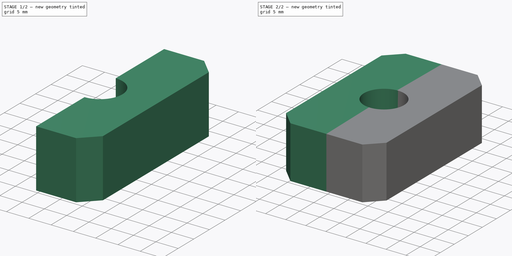
[diagram: build sequence overview — one tinted view per stage of 2, left to right]
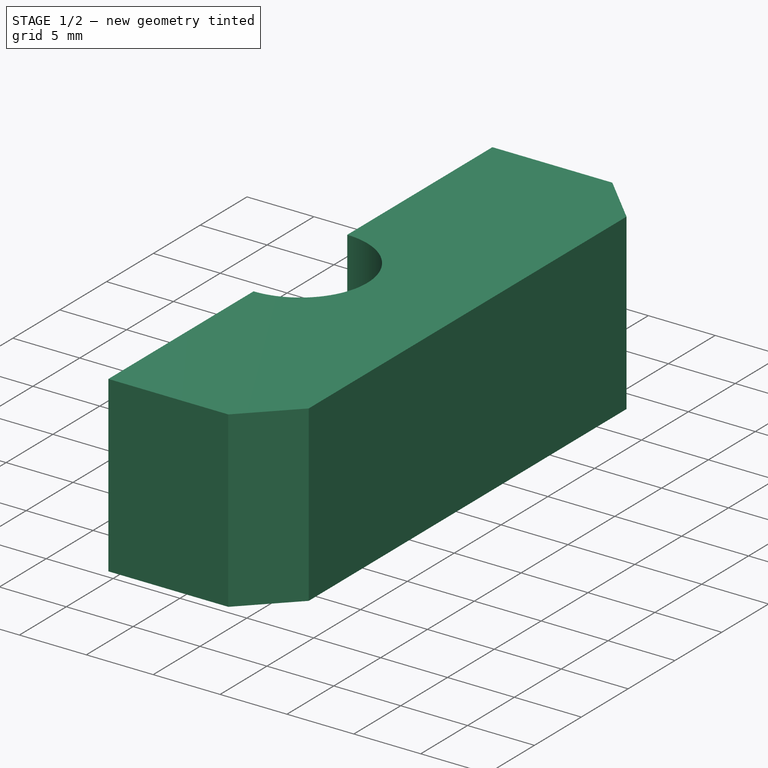
[diagram: stage 1 of 2 — iso view after this stage's code; geometry added in this stage tinted green]
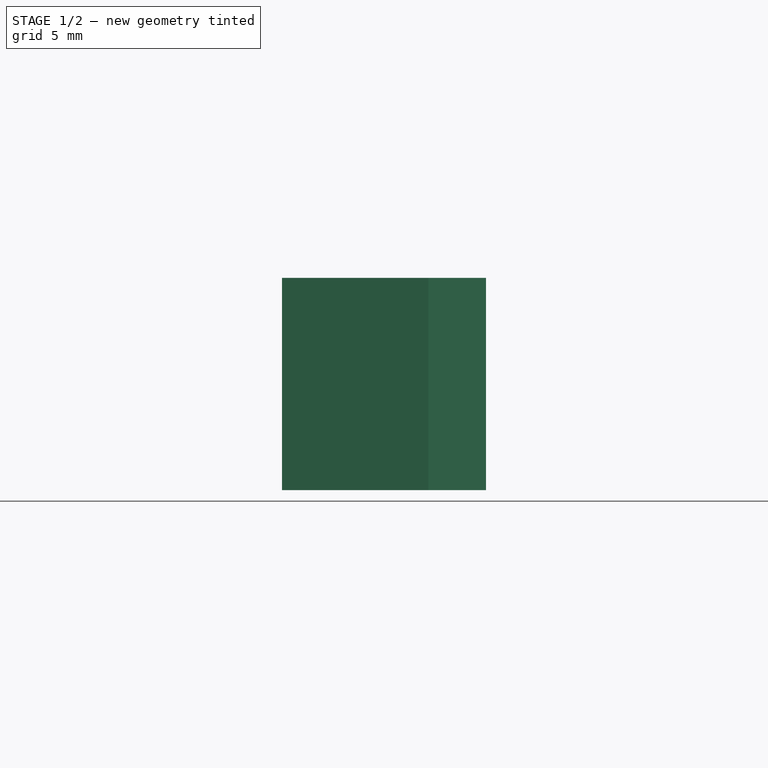
[diagram: stage 1 of 2 — front view after this stage's code; geometry added in this stage tinted green]
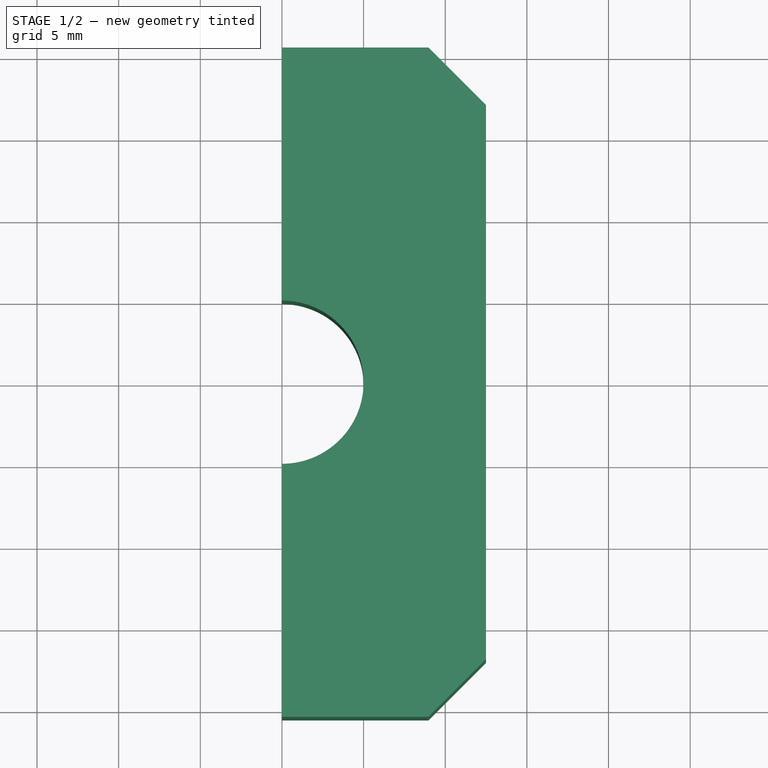
[diagram: stage 1 of 2 — top view after this stage's code; geometry added in this stage tinted green]
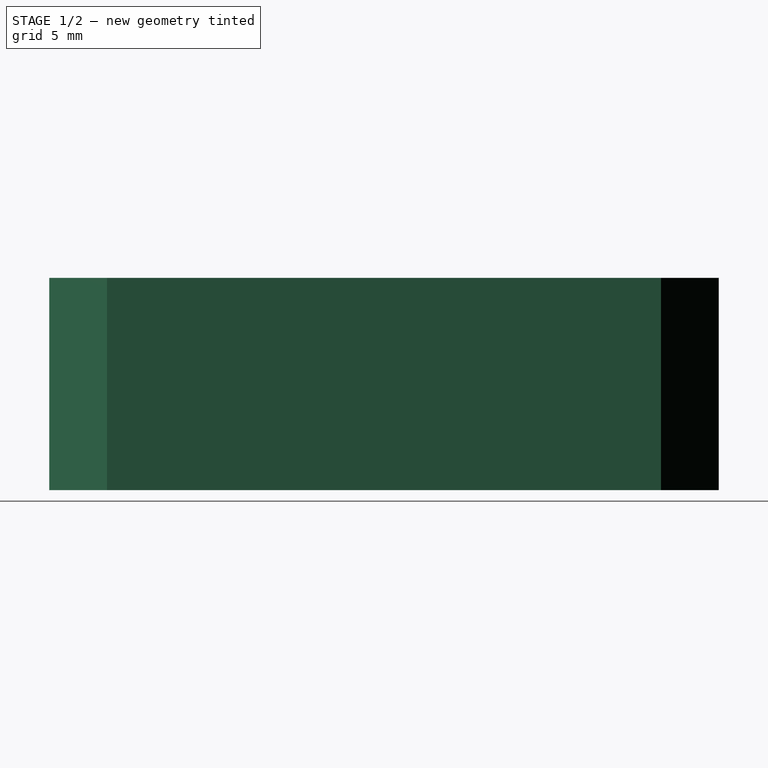
[diagram: stage 1 of 2 — right view after this stage's code; geometry added in this stage tinted green]
FCSTD DOCUMENT  (FreeCAD 0.21R33771 (Git))
Label: Stator_CoilWinder_Spacer
License: All rights reserved
LicenseURL: http://en.wikipedia.org/wiki/All_rights_reserved
objects: Sketcher::SketchObject×1, PartDesign::Pad×1, Spreadsheet::Sheet×1, PartDesign::Mirrored×1, PartDesign::Body×1, Part::Refine×1
note: 6 computed .brp shape members not serialized (recipe doc carries the construction recipe); baked Part::Feature solids carry a one-line shape summary decoded from their .brp
EXTERNAL_REF file=../../../Master_of_Puppets.FCStd obj=Alternator
EXTERNAL_REF file=../../../Master_of_Puppets.FCStd obj=Spreadsheet

FEATURE [Sketcher::SketchObject] Sketch
  FullyConstrained = true
  MapMode = 5
  Support = -> [XY_Plane001]
  expr: Constraints[11] = Spreadsheet.OuterHorizontalDistanceFromCenter
  expr: Constraints[17] = Spreadsheet.RectangularVerticalDistanceOfHolesFromCenter * 2
  expr: Constraints[31] = Spreadsheet.CoilWinderPinRadius
  expr: Constraints[43] = Spreadsheet.InnerAngleConstraint
  expr: Constraints[44] = Spreadsheet.InnerHorizontalDistanceFromCenter
  expr: Constraints[45] = Spreadsheet.OuterAngleConstraint
  expr: Constraints[8] = Spreadsheet.CoilWinderCenterRodRadius
  sketch-geometry (19):
    g0: LineSegment StartX=12.5 StartY=20.5 StartZ=0 EndX=0 EndY=20.5 EndZ=0
    g1: LineSegment StartX=0 StartY=20.5 StartZ=0 EndX=0 EndY=5 EndZ=0
    g2: ArcOfCircle CenterX=0 CenterY=0 CenterZ=0 NormalX=0 NormalY=0 NormalZ=1 AngleXU=0 Radius=5 StartAngle=4.71239 EndAngle=7.85398
    g3: LineSegment StartX=-9e-16 StartY=-5 StartZ=0 EndX=0 EndY=-20.5 EndZ=0
    g4: LineSegment StartX=0 StartY=20.5 StartZ=0 EndX=0 EndY=5 EndZ=0
    g5: LineSegment StartX=12.5 StartY=20.5 StartZ=0 EndX=12.5 EndY=-20.5 EndZ=0
    g6: LineSegment StartX=12.5 StartY=-20.5 StartZ=0 EndX=0 EndY=-20.5 EndZ=0
    g7: GeomPoint X=10.7322 Y=18.7322 Z=0
    g8: LineSegment StartX=10.7322 StartY=18.7322 StartZ=0 EndX=12.5 EndY=16.9645 EndZ=0
    g9: LineSegment StartX=12.5 StartY=16.9645 StartZ=0 EndX=12.5 EndY=-16.9645 EndZ=0
    g10: LineSegment StartX=12.5 StartY=-16.9645 StartZ=0 EndX=10.7322 EndY=-18.7322 EndZ=0
    g11: LineSegment StartX=10.7322 StartY=-18.7322 StartZ=0 EndX=8.96447 EndY=-20.5 EndZ=0
    g12: LineSegment StartX=8.96447 StartY=-20.5 StartZ=0 EndX=0 EndY=-20.5 EndZ=0
    g13: LineSegment StartX=10.7322 StartY=18.7322 StartZ=0 EndX=8.96447 EndY=20.5 EndZ=0
    g14: LineSegment StartX=8.96447 StartY=20.5 StartZ=0 EndX=0 EndY=20.5 EndZ=0
    g15: Circle CenterX=12.5 CenterY=20.5 CenterZ=0 NormalX=0 NormalY=0 NormalZ=1 AngleXU=0 Radius=2.5
    g16: Circle CenterX=12.5 CenterY=-20.5 CenterZ=0 NormalX=0 NormalY=0 NormalZ=1 AngleXU=0 Radius=2.5
    g17: LineSegment StartX=10.7322 StartY=18.7322 StartZ=0 EndX=12.5 EndY=20.5 EndZ=0
    g18: LineSegment StartX=12.5 StartY=-20.5 StartZ=0 EndX=10.7322 EndY=-18.7322 EndZ=0
  constraints (46):
    c: Coincident(g1,g0)
    c: Vertical(g1)
    c: PointOnObject(g0,g-2)
    c: Horizontal(g0)
    c: Coincident(g2,g-1)
    c: Coincident(g2,g1)
    c: PointOnObject(g2,g-2)
    c: Coincident(g2,g3)
    c: Radius(g2) = 5
    c: Coincident(g4,g0)
    c: Coincident(g4,g1)
    c: Distance(g0) = 12.5
    c: Coincident(g5,g0)
    c: Coincident(g6,g5)
    c: Horizontal(g6)
    c: Coincident(g3,g6)
    c: Symmetric(g3,g0,g-1)
    c: DistanceY(g5,g0) = 41
    c: Coincident(g8,g7)
    c: PointOnObject(g8,g5)
    c: Coincident(g9,g8)
    c: PointOnObject(g9,g5)
    c: Coincident(g10,g9)
    c: PointOnObject(g11,g6)
    c: Coincident(g12,g11)
    c: Coincident(g12,g3)
    c: Coincident(g13,g8)
    c: PointOnObject(g13,g0)
    c: Coincident(g14,g13)
    c: Coincident(g14,g4)
    c: Coincident(g15,g0)
    c: Radius(g15) = 2.5
    c: Coincident(g16,g5)
    c: Equal(g16,g15)
    c: Parallel(g8,g13)
    c: Tangent(g8,g15) = -1.5708
    c: Coincident(g17,g8)
    c: Coincident(g17,g0)
    c: Coincident(g10,g11)
    c: Parallel(g10,g11)
    c: Tangent(g10,g16) = -1.5708
    c: Coincident(g18,g5)
    c: Coincident(g18,g10)
    c: Angle(g18,g6) = 0.785398
    c: DistanceX(g-1,g5) = 12.5
    c: Angle(g0,g17) = 0.785398
FEATURE [PartDesign::Pad] Pad
  AllowMultiFace = false
  Direction = (0,0,1)
  Length = 13
  Length2 = 100
  Profile = -> Sketch
  Type = 0
  expr: Length = Spreadsheet.StatorThickness
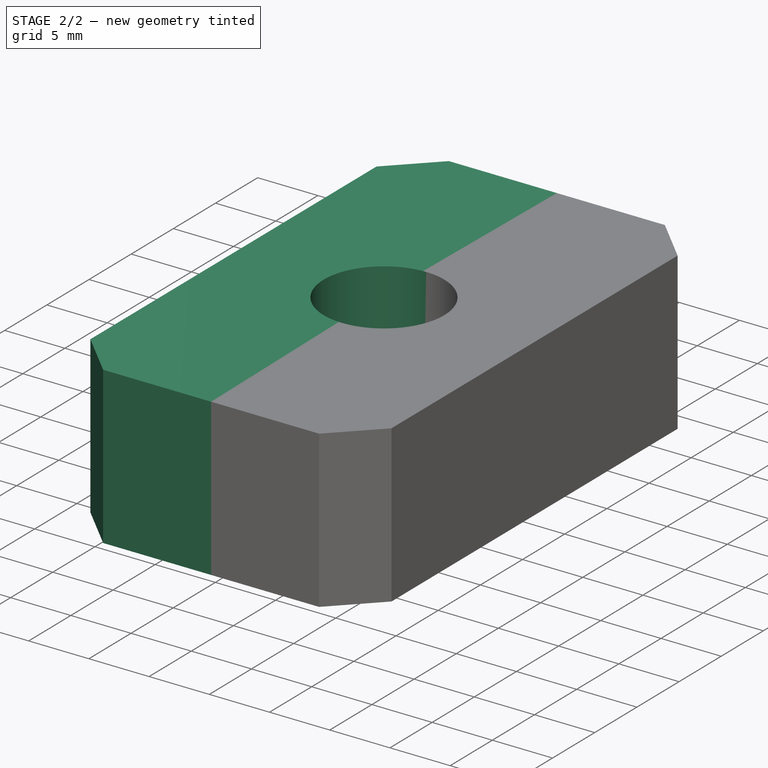
[diagram: stage 2 of 2 — iso view after this stage's code; geometry added in this stage tinted green]
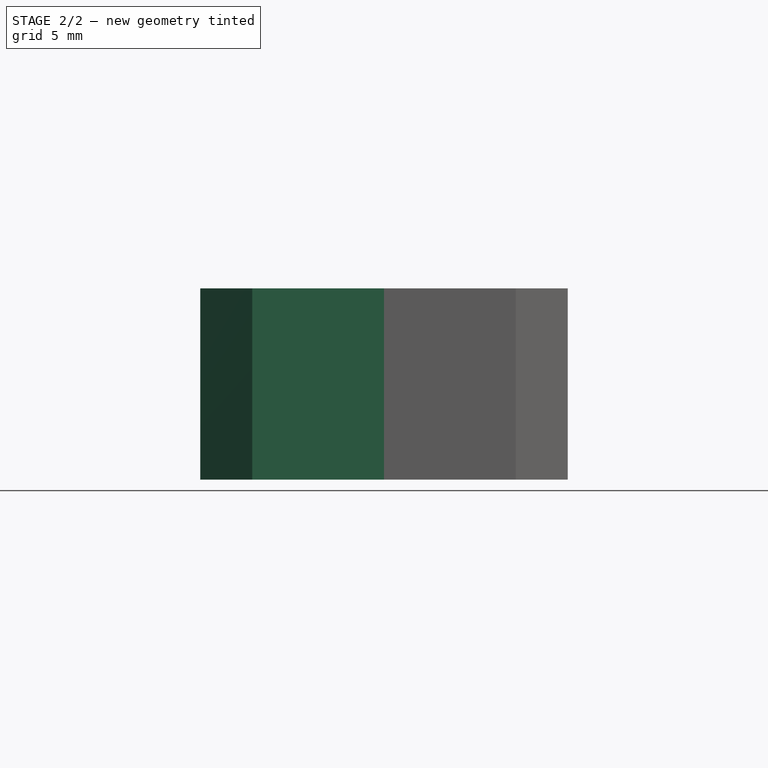
[diagram: stage 2 of 2 — front view after this stage's code; geometry added in this stage tinted green]
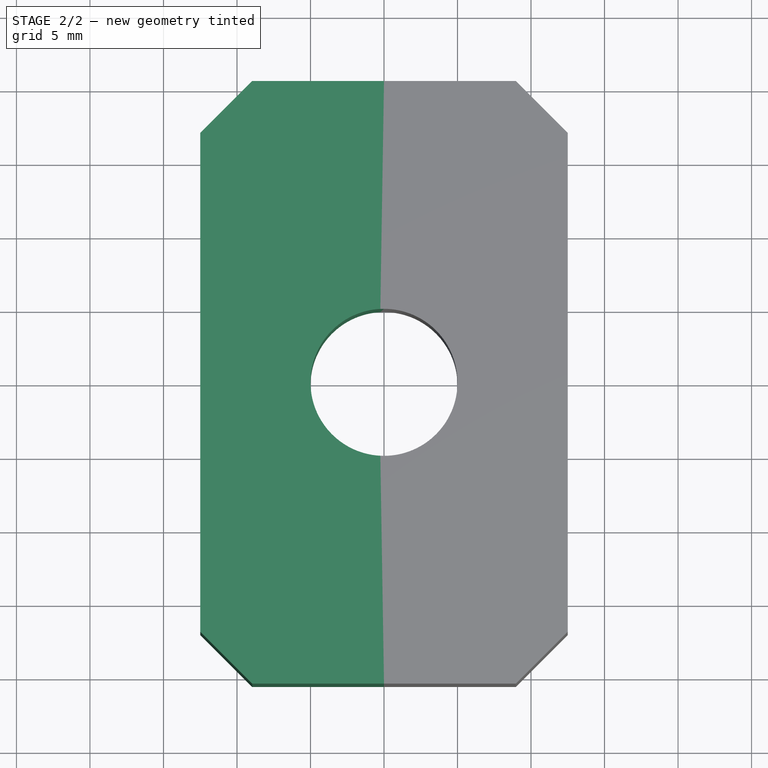
[diagram: stage 2 of 2 — top view after this stage's code; geometry added in this stage tinted green]
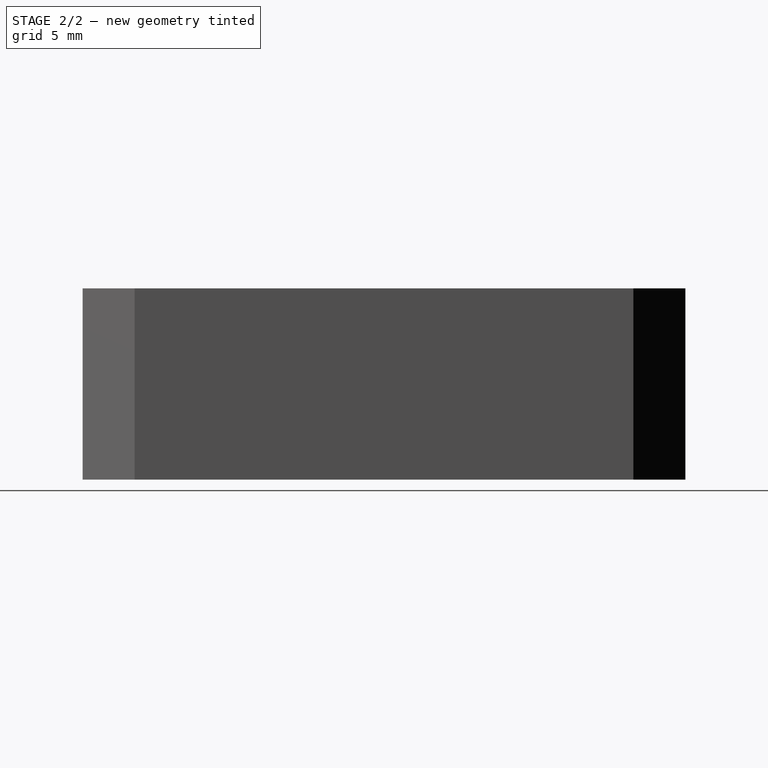
[diagram: stage 2 of 2 — right view after this stage's code; geometry added in this stage tinted green]
FEATURE [Spreadsheet::Sheet] Spreadsheet
  cells = A1='Inputs; A2='Spreadsheet; A3='MagnetLength; B3(MagnetLength)==Master_of_Puppets#Spreadsheet.MagnetLength; A4='StatorThickness; B4(StatorThickness)==Master_of_Puppets#Spreadsheet.StatorThickness; A5='CoilHoleWidthAtOuterRadius; B5(CoilHoleWidthAtOuterRadius)==Master_of_Puppets#Spreadsheet.CoilHoleWidthAtOuterRadius; A6='CoilHoleWidthAtInnerRadius; B6(CoilHoleWidthAtInnerRadius)==Master_of_Puppets#Spreadsheet.CoilHoleWidthAtInnerRadius; A7='CoilType; B7(CoilType)==Master_of_Puppets#Spreadsheet.CoilType; A8='Alternator; A9='CoilWinderCenterRodRadius; B9(CoilWinderCenterRodRadius)==Master_of_Puppets#Alternator.CoilWinderCenterRodRadius; A10='CoilWinderPinRadius; B10(CoilWinderPinRadius)==Master_of_Puppets#Alternator.CoilWinderPinRadius; A11='RectangularVerticalDistanceOfHolesFromCenter; B11(RectangularVerticalDistanceOfHolesFromCenter)==Master_of_Puppets#Alternator.RectangularVerticalDistanceOfHolesFromCenter; A12='OuterHorizontalDistanceBetweenCenterOfSmallHoles; B12(OuterHorizontalDistanceBetweenCenterOfSmallHoles)==Master_of_Puppets#Alternator.OuterHorizontalDistanceBetweenCenterOfSmallHoles; A13='InnerHorizontalDistanceBetweenCenterOfSmallHoles; B13(InnerHorizontalDistanceBetweenCenterOfSmallHoles)==Master_of_Puppets#Alternator.InnerHorizontalDistanceBetweenCenterOfSmallHoles; A14='Calculated; A15='OuterHorizontalDistanceFromCenter; B15(OuterHorizontalDistanceFromCenter)==OuterHorizontalDistanceBetweenCenterOfSmallHoles / 2; A16='InnerHorizontalDistanceFromCenter; B16(InnerHorizontalDistanceFromCenter)==InnerHorizontalDistanceBetweenCenterOfSmallHoles / 2; A17='OuterPoint; B17(OuterPoint)==create(<<vector>>; OuterHorizontalDistanceFromCenter; RectangularVerticalDistanceOfHolesFromCenter; 0); A18='InnerPoint; B18(InnerPoint)==create(<<vector>>; InnerHorizontalDistanceFromCenter; -RectangularVerticalDistanceOfHolesFromCenter; 0); A19='InnerToOuterVector; B19(InnerToOuterVector)==OuterPoint - InnerPoint; A20='AngleBetweenXAxis; B20(AngleBetweenXAxis)==acos(.InnerToOuterVector.x / .InnerToOuterVector.Length); A21='OuterAngleConstraint; B21(OuterAngleConstraint)==AngleBetweenXAxis / 2; A22='InnerAngleConstraint; B22(InnerAngleConstraint)==(180 deg - AngleBetweenXAxis) / 2
FEATURE [PartDesign::Mirrored] Mirrored
  BaseFeature = -> Pad
  MirrorPlane = -> Sketch [V_Axis]
  Originals = -> [Pad]
FEATURE [PartDesign::Body] PadBody  label="Body"
  Group = -> [Sketch,Pad,Mirrored]
  Origin = -> Origin001
  Tip = -> Mirrored
FEATURE [Part::Refine] PadBody001  label="Stator_CoilWinder_Spacer"
  Openafpm_Flat = true
  Source = -> PadBody
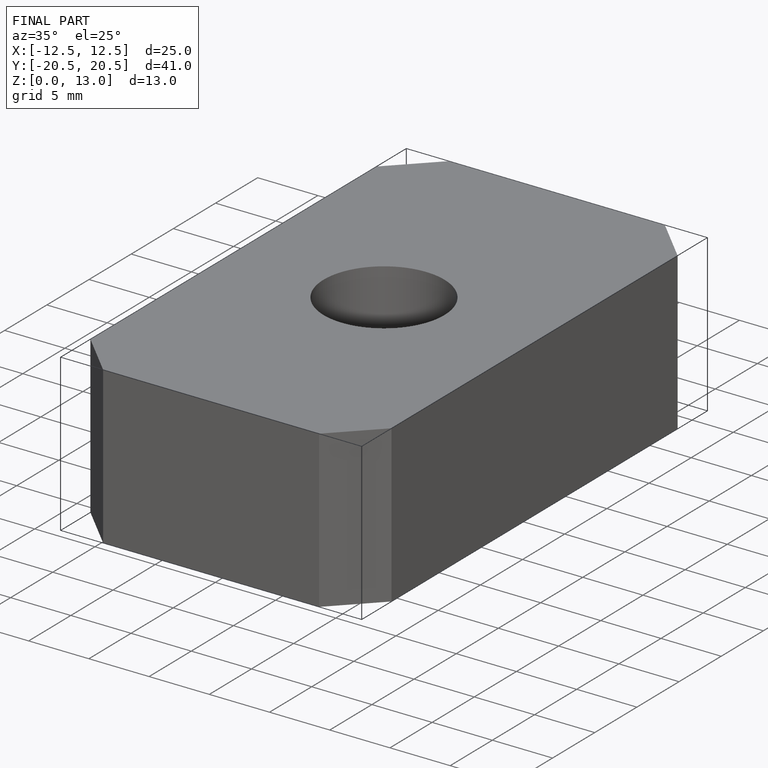
[diagram: finished part — iso view with bounding-box wireframe]
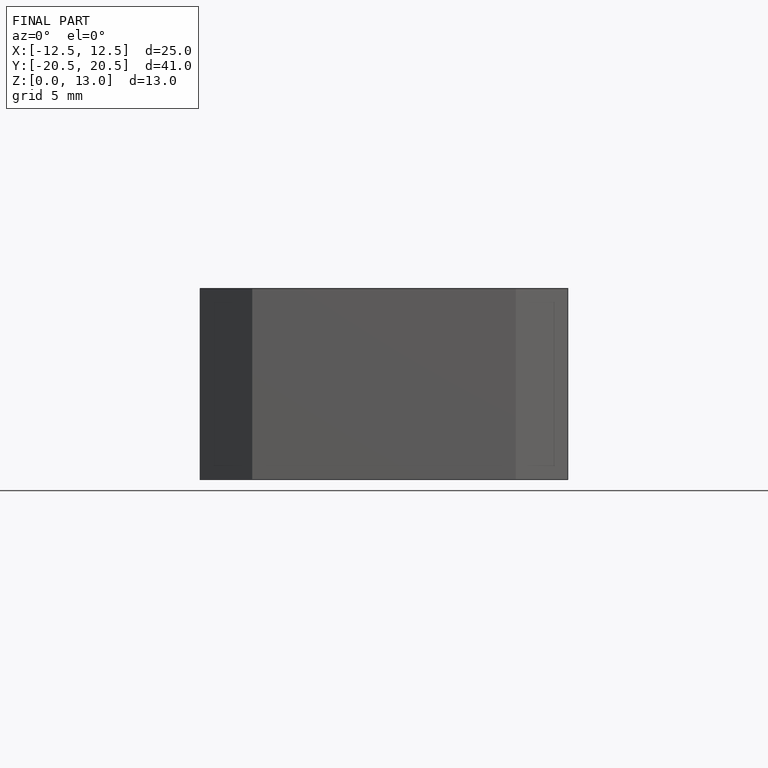
[diagram: finished part — front view with bounding-box wireframe]
